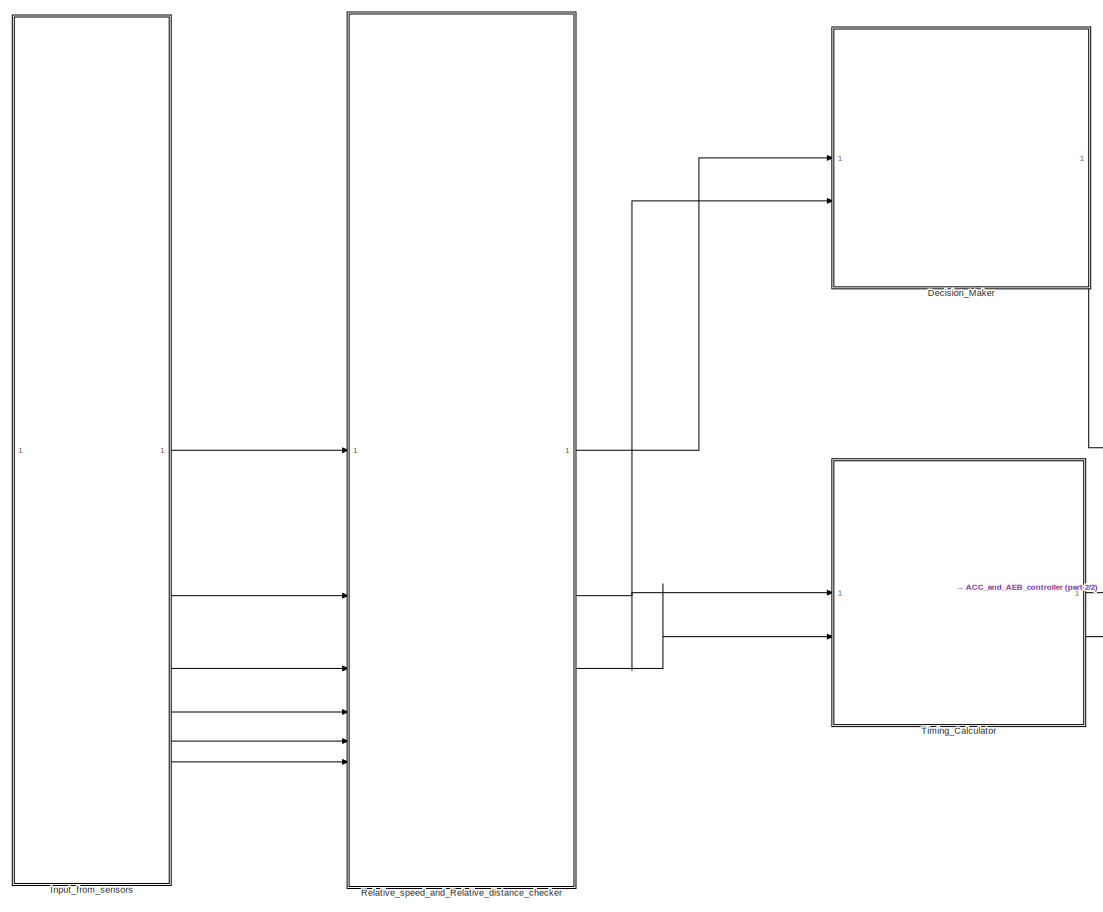
[diagram: root canvas - part 1/2, left side, full height]
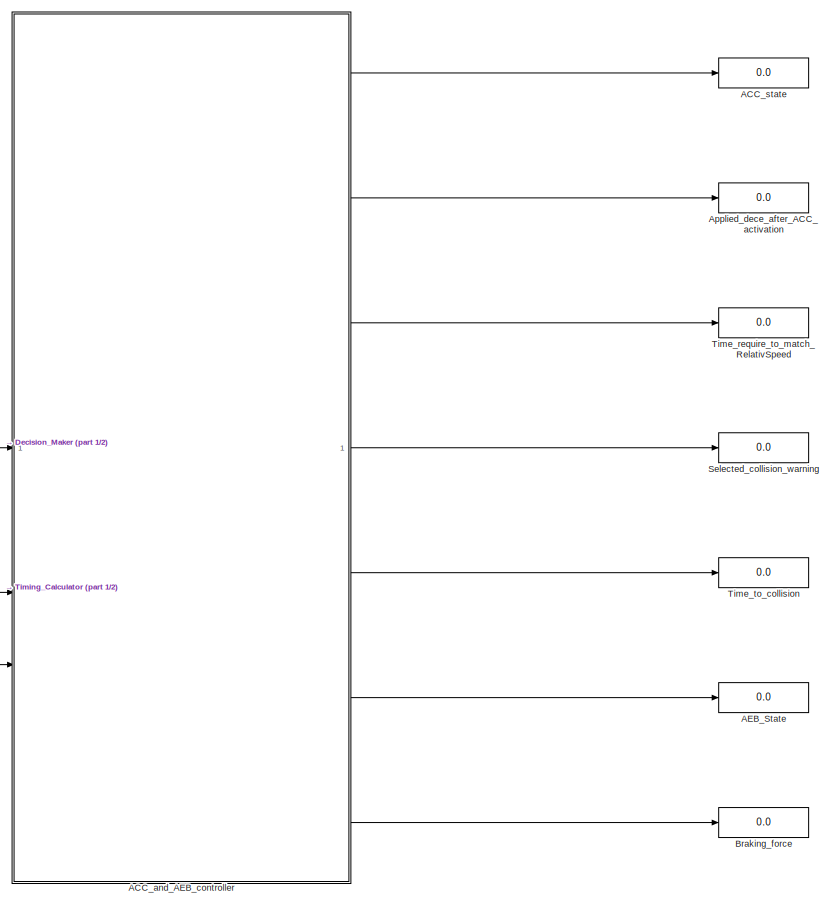
[diagram: root canvas - part 2/2, right side, full height]
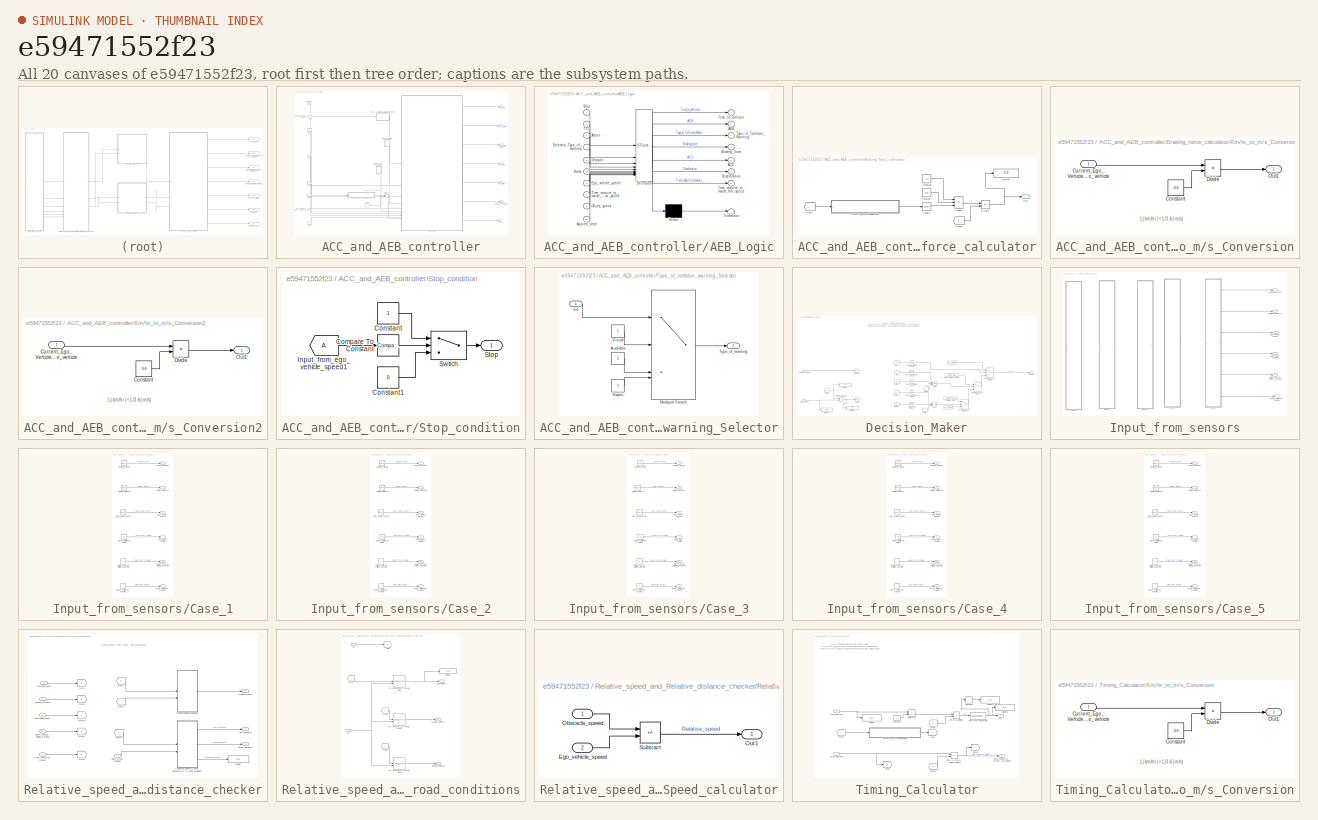
[diagram: thumbnail index - all 20 canvases of the model, root first then tree order]
MODEL slx_e59471552f23
KIND model
CONFIG AbsTol = auto
CONFIG EnableMultiTasking = off
CONFIG FixedStep = 0.1
CONFIG MaxStep = auto
CONFIG MinStep = auto
CONFIG RelTol = 1e-3
CONFIG SampleTimeConstraint = Unconstrained
CONFIG SolverName = FixedStepDiscrete
CONFIG StartTime = 0
CONFIG StopTime = 100
WORKSPACE source: mxarray member
WORKSPACE Activate_AEB = 2
WORKSPACE Do_nothing = 0
WORKSPACE M = 3
WORKSPACE Match_relative_speed = 1
BLOCK [SubSystem] ACC_and_AEB_controller
BLOCK [Outport] ACC_and_AEB_controller/ACC_state
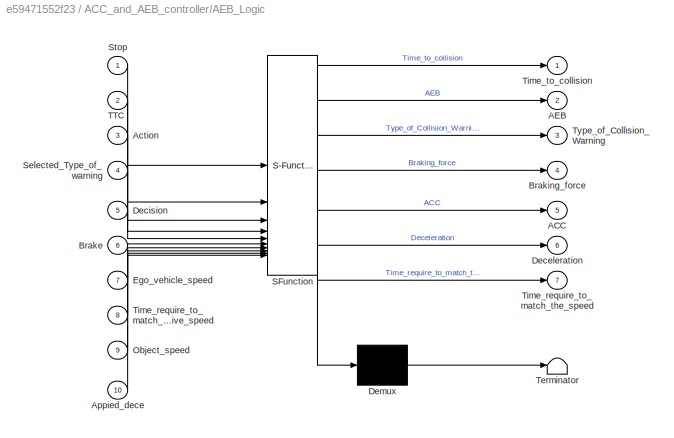
BLOCK [SubSystem] ACC_and_AEB_controller/AEB_Logic
  ErrorFcn = Stateflow.Translate.translate
  PermitHierarchicalResolution = ExplicitOnly
  PortSchema = {"entries":[{"content":{"sides":[{"content":{"connectorIds":["In5","In4","In3","In1","In2","In6","In7","In10","In8","In9"]},"type":"ConnectorPlacement.EquallySpacedRectSide","uuid":"56efa24c-13f5-4a10-8798-262846c2e7d6"},{"content":{"connectorIds":["Out2","Out1","Out3","Out5","Out6","Out7","Out4"],"side":"RIGHT"},"type":"ConnectorPlacement.EquallySpacedRectSide","uuid":"b772b444-91dc-49b5-b56a-560...<+337ch>
  SFBlockType = Chart
  TreatAsAtomicUnit = on
BLOCK [Demux] ACC_and_AEB_controller/AEB_Logic/ Demux 
  Outputs = 1
BLOCK [S-Function] ACC_and_AEB_controller/AEB_Logic/ SFunction 
  EnableBusSupport = on
  FunctionName = sf_sfun
  PortCounts = [10 8]
  SFcnIsStateOwnerBlock = off
  SFunctionDeploymentMode = off
  Tag = Stateflow S-Function 3
BLOCK [Terminator] ACC_and_AEB_controller/AEB_Logic/ Terminator 
BLOCK [Outport] ACC_and_AEB_controller/AEB_Logic/ACC
  Port = 5
BLOCK [Outport] ACC_and_AEB_controller/AEB_Logic/AEB
  Port = 2
BLOCK [Inport] ACC_and_AEB_controller/AEB_Logic/Action
  Port = 3
BLOCK [Inport] ACC_and_AEB_controller/AEB_Logic/Appied_dece
  Port = 10
BLOCK [Inport] ACC_and_AEB_controller/AEB_Logic/Brake
  Port = 6
BLOCK [Outport] ACC_and_AEB_controller/AEB_Logic/Braking_force
  Port = 4
BLOCK [Outport] ACC_and_AEB_controller/AEB_Logic/Deceleration
  Port = 6
BLOCK [Inport] ACC_and_AEB_controller/AEB_Logic/Decision
  Port = 5
BLOCK [Inport] ACC_and_AEB_controller/AEB_Logic/Ego_vehicle_speed
  Port = 7
BLOCK [Inport] ACC_and_AEB_controller/AEB_Logic/Object_speed
  Port = 9
BLOCK [Inport] ACC_and_AEB_controller/AEB_Logic/Selected_Type_of_warning
  Port = 4
BLOCK [Inport] ACC_and_AEB_controller/AEB_Logic/Stop
BLOCK [Inport] ACC_and_AEB_controller/AEB_Logic/TTC
  Port = 2
BLOCK [Inport] ACC_and_AEB_controller/AEB_Logic/Time_require_to_match_relative_speed
  Port = 8
BLOCK [Outport] ACC_and_AEB_controller/AEB_Logic/Time_require_to_match_the_speed
  Port = 7
BLOCK [Outport] ACC_and_AEB_controller/AEB_Logic/Time_to_collision
BLOCK [Outport] ACC_and_AEB_controller/AEB_Logic/Type_of_Collision_Warning
  Port = 3
BLOCK [Outport] ACC_and_AEB_controller/AEB_state
  Port = 6
BLOCK [Outport] ACC_and_AEB_controller/Brake
  Port = 7
BLOCK [SubSystem] ACC_and_AEB_controller/Braking_force_calculator
BLOCK [Constant] ACC_and_AEB_controller/Braking_force_calculator/Constant
  Value = 0.5
BLOCK [Constant] ACC_and_AEB_controller/Braking_force_calculator/Constant1
  Value = 1500
BLOCK [Display] ACC_and_AEB_controller/Braking_force_calculator/Display
  Decimation = 1
BLOCK [Product] ACC_and_AEB_controller/Braking_force_calculator/Divide1
  Inputs = */
BLOCK [From] ACC_and_AEB_controller/Braking_force_calculator/From6
  GotoTag = Z
  TagVisibility = global
BLOCK [From] ACC_and_AEB_controller/Braking_force_calculator/From7
  TagVisibility = global
BLOCK [SubSystem] ACC_and_AEB_controller/Braking_force_calculator/Km//hr_to_m//s_Conversion
BLOCK [Constant] ACC_and_AEB_controller/Braking_force_calculator/Km//hr_to_m//s_Conversion/Constant
  Value = 3.6
BLOCK [Inport] ACC_and_AEB_controller/Braking_force_calculator/Km//hr_to_m//s_Conversion/Current_Ego_Vehicle_Speed_Input_from_ego_vehicle
BLOCK [Product] ACC_and_AEB_controller/Braking_force_calculator/Km//hr_to_m//s_Conversion/Divide
  Inputs = */
BLOCK [Outport] ACC_and_AEB_controller/Braking_force_calculator/Km//hr_to_m//s_Conversion/Out1
BLOCK [Outport] ACC_and_AEB_controller/Braking_force_calculator/Out1
BLOCK [Product] ACC_and_AEB_controller/Braking_force_calculator/Product
  Inputs = 3
BLOCK [Math] ACC_and_AEB_controller/Braking_force_calculator/Square
  Operator = square
BLOCK [Outport] ACC_and_AEB_controller/Deceleration
  Port = 2
BLOCK [Inport] ACC_and_AEB_controller/Decision
BLOCK [Product] ACC_and_AEB_controller/Divide2
  Inputs = */
BLOCK [From] ACC_and_AEB_controller/From
  GotoTag = I
  TagVisibility = global
BLOCK [From] ACC_and_AEB_controller/From5
  GotoTag = K
  TagVisibility = global
BLOCK [From] ACC_and_AEB_controller/From7
  TagVisibility = global
BLOCK [From] ACC_and_AEB_controller/From8
  GotoTag = F
  TagVisibility = global
BLOCK [From] ACC_and_AEB_controller/From9
  GotoTag = E
  TagVisibility = global
BLOCK [From] ACC_and_AEB_controller/Input_from_warning_selector
  GotoTag = C
  TagVisibility = global
BLOCK [SubSystem] ACC_and_AEB_controller/Km//hr_to_m//s_Conversion2
BLOCK [Constant] ACC_and_AEB_controller/Km//hr_to_m//s_Conversion2/Constant
  Value = 3.6
BLOCK [Inport] ACC_and_AEB_controller/Km//hr_to_m//s_Conversion2/Current_Ego_Vehicle_Speed_Input_from_ego_vehicle
BLOCK [Product] ACC_and_AEB_controller/Km//hr_to_m//s_Conversion2/Divide
  Inputs = */
BLOCK [Outport] ACC_and_AEB_controller/Km//hr_to_m//s_Conversion2/Out1
BLOCK [SubSystem] ACC_and_AEB_controller/Stop_condition
BLOCK [Reference] ACC_and_AEB_controller/Stop_condition/Compare To Constant  REF=simulink/Logic and Bit
Operations/Compare
To Constant
  SourceBlock = simulink/Logic and Bit\nOperations/Compare\nTo Constant
  SourceType = Compare To Constant
BLOCK [Constant] ACC_and_AEB_controller/Stop_condition/Constant
BLOCK [Constant] ACC_and_AEB_controller/Stop_condition/Constant1
  Value = 0
BLOCK [From] ACC_and_AEB_controller/Stop_condition/Input_from_ego_vehicle_speed1
  TagVisibility = global
BLOCK [Outport] ACC_and_AEB_controller/Stop_condition/Stop
BLOCK [Switch] ACC_and_AEB_controller/Stop_condition/Switch
  Criteria = u2 > Threshold
  InputSameDT = off
  SaturateOnIntegerOverflow = off
BLOCK [Inport] ACC_and_AEB_controller/TTC
  Port = 2
BLOCK [Outport] ACC_and_AEB_controller/T_require_to_match_the_lead_Vehicle_speed1
  Port = 3
BLOCK [Inport] ACC_and_AEB_controller/Time_require_to_match_relative_speed1
  Port = 3
BLOCK [Outport] ACC_and_AEB_controller/Time_to_collision
  Port = 5
BLOCK [Outport] ACC_and_AEB_controller/Type_of_Collision_Warning
  Port = 4
BLOCK [SubSystem] ACC_and_AEB_controller/Type_of_collision_warning_Selector
BLOCK [Constant] ACC_and_AEB_controller/Type_of_collision_warning_Selector/Audiable
  Value = 2
BLOCK [Constant] ACC_and_AEB_controller/Type_of_collision_warning_Selector/Haptic
  Value = 3
BLOCK [Inport] ACC_and_AEB_controller/Type_of_collision_warning_Selector/In1
BLOCK [MultiPortSwitch] ACC_and_AEB_controller/Type_of_collision_warning_Selector/Multiport Switch
  InputSameDT = off
  SaturateOnIntegerOverflow = off
BLOCK [Outport] ACC_and_AEB_controller/Type_of_collision_warning_Selector/Type_of_warning
BLOCK [Constant] ACC_and_AEB_controller/Type_of_collision_warning_Selector/Visual
BLOCK [Display] ACC_state
  Decimation = 1
BLOCK [Display] AEB_State
  Decimation = 1
BLOCK [Display] Applied_dece_after_ACC_activation
  Decimation = 1
BLOCK [Display] Braking_force
  Decimation = 1
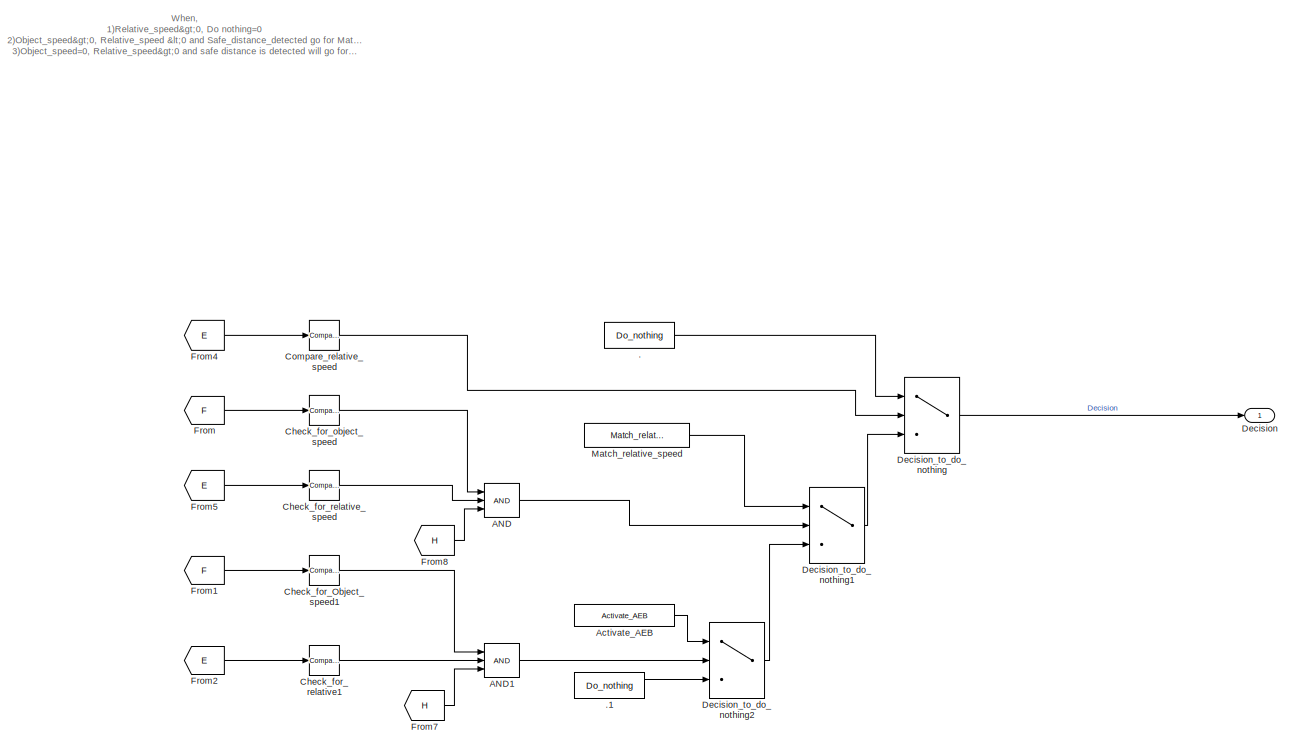
[diagram: Decision_Maker - part 1/2, center side, full height]
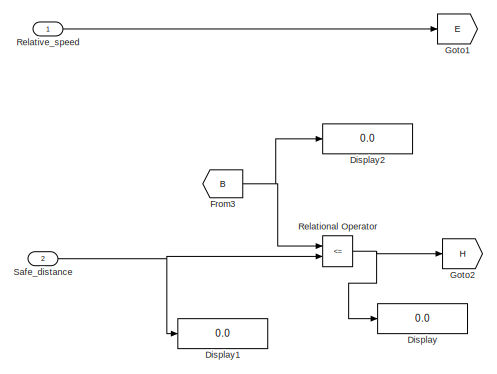
[diagram: Decision_Maker - part 2/2, bottom left region]
BLOCK [SubSystem] Decision_Maker
BLOCK [Constant] Decision_Maker/.
  Value = Do_nothing
BLOCK [Constant] Decision_Maker/.1
  Value = Do_nothing
BLOCK [Logic] Decision_Maker/AND
  AllPortsSameDT = off
  Inputs = 3
  OutDataTypeStr = boolean
BLOCK [Logic] Decision_Maker/AND1
  AllPortsSameDT = off
  Inputs = 3
  OutDataTypeStr = boolean
BLOCK [Constant] Decision_Maker/Activate_AEB
  Value = Activate_AEB
BLOCK [Reference] Decision_Maker/Check_for_Object_speed1  REF=simulink/Logic and Bit
Operations/Compare
To Constant
  SourceBlock = simulink/Logic and Bit\nOperations/Compare\nTo Constant
  SourceType = Compare To Constant
BLOCK [Reference] Decision_Maker/Check_for_object_speed  REF=simulink/Logic and Bit
Operations/Compare
To Constant
  SourceBlock = simulink/Logic and Bit\nOperations/Compare\nTo Constant
  SourceType = Compare To Constant
BLOCK [Reference] Decision_Maker/Check_for_relative1  REF=simulink/Logic and Bit
Operations/Compare
To Constant
  SourceBlock = simulink/Logic and Bit\nOperations/Compare\nTo Constant
  SourceType = Compare To Constant
BLOCK [Reference] Decision_Maker/Check_for_relative_speed  REF=simulink/Logic and Bit
Operations/Compare
To Constant
  SourceBlock = simulink/Logic and Bit\nOperations/Compare\nTo Constant
  SourceType = Compare To Constant
BLOCK [Reference] Decision_Maker/Compare_relative_speed  REF=simulink/Logic and Bit
Operations/Compare
To Constant
  SourceBlock = simulink/Logic and Bit\nOperations/Compare\nTo Constant
  SourceType = Compare To Constant
BLOCK [Outport] Decision_Maker/Decision
BLOCK [Switch] Decision_Maker/Decision_to_do_nothing
  Criteria = u2 ~= 0
  InputSameDT = off
  SaturateOnIntegerOverflow = off
BLOCK [Switch] Decision_Maker/Decision_to_do_nothing1
  Criteria = u2 ~= 0
  InputSameDT = off
  SaturateOnIntegerOverflow = off
BLOCK [Switch] Decision_Maker/Decision_to_do_nothing2
  Criteria = u2 ~= 0
  InputSameDT = off
  SaturateOnIntegerOverflow = off
BLOCK [Display] Decision_Maker/Display
  Decimation = 1
BLOCK [Display] Decision_Maker/Display1
  Decimation = 1
BLOCK [Display] Decision_Maker/Display2
  Decimation = 1
BLOCK [From] Decision_Maker/From
  GotoTag = F
  TagVisibility = global
BLOCK [From] Decision_Maker/From1
  GotoTag = F
  TagVisibility = global
BLOCK [From] Decision_Maker/From2
  GotoTag = E
  TagVisibility = global
BLOCK [From] Decision_Maker/From3
  GotoTag = B
  TagVisibility = global
BLOCK [From] Decision_Maker/From4
  GotoTag = E
  TagVisibility = global
BLOCK [From] Decision_Maker/From5
  GotoTag = E
  TagVisibility = global
BLOCK [From] Decision_Maker/From7
  GotoTag = H
BLOCK [From] Decision_Maker/From8
  GotoTag = H
BLOCK [Goto] Decision_Maker/Goto1
  GotoTag = E
  TagVisibility = global
BLOCK [Goto] Decision_Maker/Goto2
  GotoTag = H
BLOCK [Constant] Decision_Maker/Match_relative_speed
  Value = Match_relative_speed
BLOCK [RelationalOperator] Decision_Maker/Relational Operator
  InputSameDT = off
  Operator = <=
  OutDataTypeStr = boolean
  RndMeth = Simplest
BLOCK [Inport] Decision_Maker/Relative_speed
BLOCK [Inport] Decision_Maker/Safe_distance
  Port = 2
BLOCK [SubSystem] Input_from_sensors
BLOCK [SubSystem] Input_from_sensors/Case_1
  Commented = on
BLOCK [Constant] Input_from_sensors/Case_1/Driver_action_for_braking
  Value = 0
BLOCK [Outport] Input_from_sensors/Case_1/Driver_action_for_braking1
  Port = 6
BLOCK [Reference] Input_from_sensors/Case_1/Ego_vehicle_speed  REF=simulink/Sources/Repeating
Sequence
Stair
  SourceBlock = simulink/Sources/Repeating\nSequence\nStair
  SourceType = Repeating Sequence Stair
BLOCK [Outport] Input_from_sensors/Case_1/Ego_vehicle_speed1
  Port = 3
BLOCK [Reference] Input_from_sensors/Case_1/Obstacle_Speed  REF=simulink/Sources/Repeating
Sequence
Stair
  SourceBlock = simulink/Sources/Repeating\nSequence\nStair
  SourceType = Repeating Sequence Stair
BLOCK [Outport] Input_from_sensors/Case_1/Obstacle_Speed1
BLOCK [Reference] Input_from_sensors/Case_1/Relative_Distance  REF=simulink/Sources/Repeating
Sequence
Stair
  SourceBlock = simulink/Sources/Repeating\nSequence\nStair
  SourceType = Repeating Sequence Stair
BLOCK [Outport] Input_from_sensors/Case_1/Relative_Distance1
  Port = 2
BLOCK [Outport] Input_from_sensors/Case_1/Select_Road_condition
  Port = 4
BLOCK [Constant] Input_from_sensors/Case_1/Select_Type_of_collision_warning
BLOCK [Outport] Input_from_sensors/Case_1/Select_Type_of_collision_warning1
  Port = 5
BLOCK [Constant] Input_from_sensors/Case_1/Select_coeffient_of_friction
  Value = 0.8
BLOCK [SubSystem] Input_from_sensors/Case_2
BLOCK [Constant] Input_from_sensors/Case_2/Driver_action_for_braking
BLOCK [Outport] Input_from_sensors/Case_2/Driver_action_for_braking1
  Port = 6
BLOCK [Reference] Input_from_sensors/Case_2/Ego_vehicle_speed  REF=simulink/Sources/Repeating
Sequence
Stair
  SourceBlock = simulink/Sources/Repeating\nSequence\nStair
  SourceType = Repeating Sequence Stair
BLOCK [Outport] Input_from_sensors/Case_2/Ego_vehicle_speed1
  Port = 3
BLOCK [Reference] Input_from_sensors/Case_2/Obstacle_Speed  REF=simulink/Sources/Repeating
Sequence
Stair
  SourceBlock = simulink/Sources/Repeating\nSequence\nStair
  SourceType = Repeating Sequence Stair
BLOCK [Outport] Input_from_sensors/Case_2/Obstacle_Speed1
BLOCK [Reference] Input_from_sensors/Case_2/Relative_Distance  REF=simulink/Sources/Repeating
Sequence
Stair
  SourceBlock = simulink/Sources/Repeating\nSequence\nStair
  SourceType = Repeating Sequence Stair
BLOCK [Outport] Input_from_sensors/Case_2/Relative_Distance1
  Port = 2
BLOCK [Outport] Input_from_sensors/Case_2/Select_Road_condition
  Port = 4
BLOCK [Constant] Input_from_sensors/Case_2/Select_Type_of_collision_warning
BLOCK [Outport] Input_from_sensors/Case_2/Select_Type_of_collision_warning1
  Port = 5
BLOCK [Constant] Input_from_sensors/Case_2/Select_coeffient_of_friction
  Value = 0.8
BLOCK [SubSystem] Input_from_sensors/Case_3
  Commented = on
BLOCK [Constant] Input_from_sensors/Case_3/Driver_action_for_braking
  Value = 0
BLOCK [Outport] Input_from_sensors/Case_3/Driver_action_for_braking1
  Port = 6
BLOCK [Reference] Input_from_sensors/Case_3/Ego_vehicle_speed  REF=simulink/Sources/Repeating
Sequence
Stair
  SourceBlock = simulink/Sources/Repeating\nSequence\nStair
  SourceType = Repeating Sequence Stair
BLOCK [Outport] Input_from_sensors/Case_3/Ego_vehicle_speed1
  Port = 3
BLOCK [Reference] Input_from_sensors/Case_3/Obstacle_Speed  REF=simulink/Sources/Repeating
Sequence
Stair
  SourceBlock = simulink/Sources/Repeating\nSequence\nStair
  SourceType = Repeating Sequence Stair
BLOCK [Outport] Input_from_sensors/Case_3/Obstacle_Speed1
BLOCK [Reference] Input_from_sensors/Case_3/Relative_Distance  REF=simulink/Sources/Repeating
Sequence
Stair
  SourceBlock = simulink/Sources/Repeating\nSequence\nStair
  SourceType = Repeating Sequence Stair
BLOCK [Outport] Input_from_sensors/Case_3/Relative_Distance1
  Port = 2
BLOCK [Outport] Input_from_sensors/Case_3/Select_Road_condition
  Port = 4
BLOCK [Constant] Input_from_sensors/Case_3/Select_Type_of_collision_warning
BLOCK [Outport] Input_from_sensors/Case_3/Select_Type_of_collision_warning1
  Port = 5
BLOCK [Constant] Input_from_sensors/Case_3/Select_coeffient_of_friction
  Value = 0.8
BLOCK [SubSystem] Input_from_sensors/Case_4
  Commented = on
BLOCK [Constant] Input_from_sensors/Case_4/Driver_action_for_braking
  Value = 0
BLOCK [Outport] Input_from_sensors/Case_4/Driver_action_for_braking1
  Port = 6
BLOCK [Reference] Input_from_sensors/Case_4/Ego_vehicle_speed  REF=simulink/Sources/Repeating
Sequence
Stair
  SourceBlock = simulink/Sources/Repeating\nSequence\nStair
  SourceType = Repeating Sequence Stair
BLOCK [Outport] Input_from_sensors/Case_4/Ego_vehicle_speed1
  Port = 3
BLOCK [Reference] Input_from_sensors/Case_4/Obstacle_Speed  REF=simulink/Sources/Repeating
Sequence
Stair
  SourceBlock = simulink/Sources/Repeating\nSequence\nStair
  SourceType = Repeating Sequence Stair
BLOCK [Outport] Input_from_sensors/Case_4/Obstacle_Speed1
BLOCK [Reference] Input_from_sensors/Case_4/Relative_Distance  REF=simulink/Sources/Repeating
Sequence
Stair
  SourceBlock = simulink/Sources/Repeating\nSequence\nStair
  SourceType = Repeating Sequence Stair
BLOCK [Outport] Input_from_sensors/Case_4/Relative_Distance1
  Port = 2
BLOCK [Outport] Input_from_sensors/Case_4/Select_Road_condition
  Port = 4
BLOCK [Constant] Input_from_sensors/Case_4/Select_Type_of_collision_warning
BLOCK [Outport] Input_from_sensors/Case_4/Select_Type_of_collision_warning1
  Port = 5
BLOCK [Constant] Input_from_sensors/Case_4/Select_coeffient_of_friction
  Value = 0.8
BLOCK [SubSystem] Input_from_sensors/Case_5
  Commented = on
BLOCK [Constant] Input_from_sensors/Case_5/Driver_action_for_braking
  Value = 0
BLOCK [Outport] Input_from_sensors/Case_5/Driver_action_for_braking1
  Port = 6
BLOCK [Reference] Input_from_sensors/Case_5/Ego_vehicle_speed  REF=simulink/Sources/Repeating
Sequence
Stair
  SourceBlock = simulink/Sources/Repeating\nSequence\nStair
  SourceType = Repeating Sequence Stair
BLOCK [Outport] Input_from_sensors/Case_5/Ego_vehicle_speed1
  Port = 3
BLOCK [Reference] Input_from_sensors/Case_5/Obstacle_Speed  REF=simulink/Sources/Repeating
Sequence
Stair
  SourceBlock = simulink/Sources/Repeating\nSequence\nStair
  SourceType = Repeating Sequence Stair
BLOCK [Outport] Input_from_sensors/Case_5/Obstacle_Speed1
BLOCK [Reference] Input_from_sensors/Case_5/Relative_Distance  REF=simulink/Sources/Repeating
Sequence
Stair
  SourceBlock = simulink/Sources/Repeating\nSequence\nStair
  SourceType = Repeating Sequence Stair
BLOCK [Outport] Input_from_sensors/Case_5/Relative_Distance1
  Port = 2
BLOCK [Outport] Input_from_sensors/Case_5/Select_Road_condition
  Port = 4
BLOCK [Constant] Input_from_sensors/Case_5/Select_Type_of_collision_warning
BLOCK [Outport] Input_from_sensors/Case_5/Select_Type_of_collision_warning1
  Port = 5
BLOCK [Constant] Input_from_sensors/Case_5/Select_coeffient_of_friction
  Value = 0.8
BLOCK [Outport] Input_from_sensors/Driver_action_for_braking1
  Port = 6
BLOCK [Outport] Input_from_sensors/Ego_vehicle_speed1
  Port = 3
BLOCK [Outport] Input_from_sensors/Obstacle_Speed1
BLOCK [Outport] Input_from_sensors/Relative_Distance1
  Port = 2
BLOCK [Outport] Input_from_sensors/Select_Road_condition
  Port = 4
BLOCK [Outport] Input_from_sensors/Select_Type_of_collision_warning1
  Port = 5
BLOCK [SubSystem] Relative_speed_and_Relative_distance_checker
BLOCK [Outport] Relative_speed_and_Relative_distance_checker/Brake_distance
  Port = 3
BLOCK [SubSystem] Relative_speed_and_Relative_distance_checker/Calculated_Speed_vs_Safe_distance_Data_based_on_different_road_conditions
BLOCK [Outport] Relative_speed_and_Relative_distance_checker/Calculated_Speed_vs_Safe_distance_Data_based_on_different_road_conditions/Braking_distance
  Port = 2
BLOCK [Display] Relative_speed_and_Relative_distance_checker/Calculated_Speed_vs_Safe_distance_Data_based_on_different_road_conditions/Display
  Decimation = 1
BLOCK [Lookup_n-D] Relative_speed_and_Relative_distance_checker/Calculated_Speed_vs_Safe_distance_Data_based_on_different_road_conditions/Dry_concrete_Or_Asphalt_road
  BreakpointsForDimension1 = [30:10:120]
  BreakpointsForDimension2 = [0.2,0.5,0.8]
  BreakpointsForDimension3 = [5, 7]
  InputPortMap = u0,u1
  InternalRulePriority = Speed
  RndMeth = Simplest
  Table = [24.03 38.91 57.71 80.46 107.1 137.7 172.3 210.7 253.2 299.5; 13.41 20.03 28.22 37.98 49.32 62.23 76.71 92.77 110.4 129.6; 10.75 15.3 20.84 27.36 34.84 43.33 52.81 63.27 74.72 87.1 ].'
BLOCK [Lookup_n-D] Relative_speed_and_Relative_distance_checker/Calculated_Speed_vs_Safe_distance_Data_based_on_different_road_conditions/Dry_concrete_Or_Asphalt_road1
  BreakpointsForDimension1 = [30:10:120]
  BreakpointsForDimension2 = [0.2,0.5,0.8]
  BreakpointsForDimension3 = [5, 7]
  InputPortMap = u0,u1
  InternalRulePriority = Speed
  RndMeth = Simplest
  Table = [17.7 31.46 49.16 70.79 96.35 125.8 159.3 196.6 237.9 283.2; 7.07 12.58 19.66 28.32 38.54 50.34 63.71 78.65 95.17 113.3; 4.42 7.86 12.29 17.7 24.07 31.45 39.81 49.16 59.5 70.77].'
BLOCK [Lookup_n-D] Relative_speed_and_Relative_distance_checker/Calculated_Speed_vs_Safe_distance_Data_based_on_different_road_conditions/Dry_concrete_Or_Asphalt_road2
  BreakpointsForDimension1 = [30:10:120]
  BreakpointsForDimension2 = [0.2,0.5,0.8]
  BreakpointsForDimension3 = [5, 7]
  InputPortMap = u0,u1
  InternalRulePriority = Speed
  RndMeth = Simplest
  Table = [21.03 35.91 54.71 77.46 104.1 134.7 169.3 207.7 250.2 296.5; 10.41 17.03 25.22 34.98 46.32 59.23 73.71 89.77 107.4 126.6; 7.75 12.3 17.84 24.36 31.84 40.33 49.81 60.27 71.72 84.1].'
BLOCK [From] Relative_speed_and_Relative_distance_checker/Calculated_Speed_vs_Safe_distance_Data_based_on_different_road_conditions/From
BLOCK [From] Relative_speed_and_Relative_distance_checker/Calculated_Speed_vs_Safe_distance_Data_based_on_different_road_conditions/From3
BLOCK [From] Relative_speed_and_Relative_distance_checker/Calculated_Speed_vs_Safe_distance_Data_based_on_different_road_conditions/From6
BLOCK [Goto] Relative_speed_and_Relative_distance_checker/Calculated_Speed_vs_Safe_distance_Data_based_on_different_road_conditions/Goto
BLOCK [Inport] Relative_speed_and_Relative_distance_checker/Calculated_Speed_vs_Safe_distance_Data_based_on_different_road_conditions/In1
  Port = 2
BLOCK [Inport] Relative_speed_and_Relative_distance_checker/Calculated_Speed_vs_Safe_distance_Data_based_on_different_road_conditions/In4
BLOCK [Outport] Relative_speed_and_Relative_distance_checker/Calculated_Speed_vs_Safe_distance_Data_based_on_different_road_conditions/Safe_distance
BLOCK [Outport] Relative_speed_and_Relative_distance_checker/Calculated_Speed_vs_Safe_distance_Data_based_on_different_road_conditions/Stopping_distance
  Port = 3
BLOCK [Display] Relative_speed_and_Relative_distance_checker/Display
  Decimation = 1
BLOCK [Inport] Relative_speed_and_Relative_distance_checker/Driver_action_for_braking
  Port = 6
BLOCK [Inport] Relative_speed_and_Relative_distance_checker/Ego_vehicle_speed
  Port = 3
BLOCK [From] Relative_speed_and_Relative_distance_checker/From1
  GotoTag = F
  TagVisibility = global
BLOCK [From] Relative_speed_and_Relative_distance_checker/From2
  TagVisibility = global
BLOCK [From] Relative_speed_and_Relative_distance_checker/From3
  TagVisibility = global
BLOCK [Goto] Relative_speed_and_Relative_distance_checker/Goto
  GotoTag = F
  TagVisibility = global
BLOCK [Goto] Relative_speed_and_Relative_distance_checker/Goto1
  GotoTag = C
  TagVisibility = global
BLOCK [Goto] Relative_speed_and_Relative_distance_checker/Goto2
  GotoTag = B
  TagVisibility = global
BLOCK [Goto] Relative_speed_and_Relative_distance_checker/Goto3
  TagVisibility = global
BLOCK [Goto] Relative_speed_and_Relative_distance_checker/Goto4
  GotoTag = K
  TagVisibility = global
BLOCK [Inport] Relative_speed_and_Relative_distance_checker/Obstacle_speed
BLOCK [Inport] Relative_speed_and_Relative_distance_checker/Relative_Distance
  Port = 2
BLOCK [SubSystem] Relative_speed_and_Relative_distance_checker/Relative_Speed_calculator
BLOCK [Inport] Relative_speed_and_Relative_distance_checker/Relative_Speed_calculator/Ego_vehicle_speed
  Port = 2
BLOCK [Inport] Relative_speed_and_Relative_distance_checker/Relative_Speed_calculator/Obstacle_speed
BLOCK [Outport] Relative_speed_and_Relative_distance_checker/Relative_Speed_calculator/Out1
BLOCK [Sum] Relative_speed_and_Relative_distance_checker/Relative_Speed_calculator/Subtract
  IconShape = rectangular
  Inputs = +-
BLOCK [Outport] Relative_speed_and_Relative_distance_checker/Relative_speed
BLOCK [Outport] Relative_speed_and_Relative_distance_checker/Safe_distance
  Port = 2
BLOCK [Inport] Relative_speed_and_Relative_distance_checker/Select_Road_condition
  Port = 4
BLOCK [Inport] Relative_speed_and_Relative_distance_checker/Select_Type_of_collision_warning
  Port = 5
BLOCK [Display] Selected_collision_warning
  Decimation = 1
BLOCK [Display] Time_require_to_match_RelativSpeed
  Decimation = 1
BLOCK [Display] Time_to_collision
  Decimation = 1
BLOCK [SubSystem] Timing_Calculator
BLOCK [Inport] Timing_Calculator/Brake_distance
  Port = 2
BLOCK [Constant] Timing_Calculator/Constant
  Value = 3
BLOCK [DataTypeConversion] Timing_Calculator/Data Type Conversion
  OutDataTypeStr = double
  RndMeth = Floor
  SaturateOnIntegerOverflow = off
BLOCK [Display] Timing_Calculator/Display
  Decimation = 1
BLOCK [Display] Timing_Calculator/Display1
  Decimation = 1
BLOCK [Display] Timing_Calculator/Display2
  Decimation = 1
BLOCK [From] Timing_Calculator/From
  GotoTag = F
BLOCK [From] Timing_Calculator/From2
  GotoTag = F
BLOCK [From] Timing_Calculator/From5
  TagVisibility = global
BLOCK [Goto] Timing_Calculator/Goto
  GotoTag = F
BLOCK [Goto] Timing_Calculator/Goto2
  GotoTag = Z
  TagVisibility = global
BLOCK [Goto] Timing_Calculator/Goto3
  GotoTag = I
  TagVisibility = global
BLOCK [SubSystem] Timing_Calculator/Km//hr_to_m//s_Conversion
BLOCK [Constant] Timing_Calculator/Km//hr_to_m//s_Conversion/Constant
  Value = 3.6
BLOCK [Inport] Timing_Calculator/Km//hr_to_m//s_Conversion/Current_Ego_Vehicle_Speed_Input_from_ego_vehicle
BLOCK [Product] Timing_Calculator/Km//hr_to_m//s_Conversion/Divide
  Inputs = */
BLOCK [Outport] Timing_Calculator/Km//hr_to_m//s_Conversion/Out1
BLOCK [Quantizer] Timing_Calculator/Quantizer
  QuantizationInterval = 0.4
BLOCK [Inport] Timing_Calculator/Safe_distance
BLOCK [Sum] Timing_Calculator/Subtract
  IconShape = rectangular
  Inputs = +-
BLOCK [Outport] Timing_Calculator/TTC
BLOCK [Outport] Timing_Calculator/Time_require_to_match_relative_speed
  Port = 2
BLOCK [Product] Timing_Calculator/Time_to_collision
  Inputs = */
  RndMeth = Zero
BLOCK [Product] Timing_Calculator/Time_to_match_relative_speed
  Inputs = */
ANNOTATION ACC_and_AEB_controller/Braking_force_calculator/Km//hr_to_m//s_Conversion: 1(km/hr)=1/3.6(m/s)
ANNOTATION ACC_and_AEB_controller/Km//hr_to_m//s_Conversion2: 1(km/hr)=1/3.6(m/s)
ANNOTATION Decision_Maker: When, 1)Relative_speed>0, Do nothing=0 2)Object_speed>0, Relative_speed <0 and Safe_distance_detected go for Match relative speed=1 3)Object_speed=0, Relative_speed>0 and safe distance is detected will go for AEB =2
ANNOTATION Relative_speed_and_Relative_distance_checker: Relative_speed= Object_speed - Ego_vehicle_speed
ANNOTATION Timing_Calculator: 1)TTC= Stopping_distance/Ego_vehicle_velocity 2)TTC_after_reaction_time= Braking_distance/Ego_vehicle_velocity 3)Time_to_match_relative_speed=Braking_distance/Ego_vehicle_speed
ANNOTATION Timing_Calculator/Km//hr_to_m//s_Conversion: 1(km/hr)=1/3.6(m/s)
LINE ACC_and_AEB_controller/AEB_Logic:1 -> ACC_and_AEB_controller/Time_to_collision:1
LINE ACC_and_AEB_controller/AEB_Logic:2 -> ACC_and_AEB_controller/AEB_state:1
LINE ACC_and_AEB_controller/AEB_Logic:3 -> ACC_and_AEB_controller/Type_of_Collision_Warning:1
LINE ACC_and_AEB_controller/AEB_Logic:4 -> ACC_and_AEB_controller/Brake:1
LINE ACC_and_AEB_controller/AEB_Logic:5 -> ACC_and_AEB_controller/ACC_state:1
LINE ACC_and_AEB_controller/AEB_Logic:6 -> ACC_and_AEB_controller/Deceleration:1
LINE ACC_and_AEB_controller/AEB_Logic:7 -> ACC_and_AEB_controller/T_require_to_match_the_lead_Vehicle_speed1:1
LINE ACC_and_AEB_controller/Braking_force_calculator/Constant1:1 -> ACC_and_AEB_controller/Braking_force_calculator/Product:2
LINE ACC_and_AEB_controller/Braking_force_calculator/Constant:1 -> ACC_and_AEB_controller/Braking_force_calculator/Product:1
NET ACC_and_AEB_controller/Braking_force_calculator/Divide1:1 -> ACC_and_AEB_controller/Braking_force_calculator/Display:1, ACC_and_AEB_controller/Braking_force_calculator/Out1:1
LINE ACC_and_AEB_controller/Braking_force_calculator/From6:1 -> ACC_and_AEB_controller/Braking_force_calculator/Divide1:2
LINE ACC_and_AEB_controller/Braking_force_calculator/From7:1 -> ACC_and_AEB_controller/Braking_force_calculator/Km//hr_to_m//s_Conversion:1
LINE ACC_and_AEB_controller/Braking_force_calculator/Km//hr_to_m//s_Conversion/Constant:1 -> ACC_and_AEB_controller/Braking_force_calculator/Km//hr_to_m//s_Conversion/Divide:2
LINE ACC_and_AEB_controller/Braking_force_calculator/Km//hr_to_m//s_Conversion/Current_Ego_Vehicle_Speed_Input_from_ego_vehicle:1 -> ACC_and_AEB_controller/Braking_force_calculator/Km//hr_to_m//s_Conversion/Divide:1
LINE ACC_and_AEB_controller/Braking_force_calculator/Km//hr_to_m//s_Conversion/Divide:1 -> ACC_and_AEB_controller/Braking_force_calculator/Km//hr_to_m//s_Conversion/Out1:1
LINE ACC_and_AEB_controller/Braking_force_calculator/Km//hr_to_m//s_Conversion:1 -> ACC_and_AEB_controller/Braking_force_calculator/Square:1
LINE ACC_and_AEB_controller/Braking_force_calculator/Product:1 -> ACC_and_AEB_controller/Braking_force_calculator/Divide1:1
LINE ACC_and_AEB_controller/Braking_force_calculator/Square:1 -> ACC_and_AEB_controller/Braking_force_calculator/Product:3
LINE ACC_and_AEB_controller/Braking_force_calculator:1 -> ACC_and_AEB_controller/AEB_Logic:6
LINE ACC_and_AEB_controller/Decision:1 -> ACC_and_AEB_controller/AEB_Logic:5
LINE ACC_and_AEB_controller/Divide2:1 -> ACC_and_AEB_controller/AEB_Logic:10
LINE ACC_and_AEB_controller/From5:1 -> ACC_and_AEB_controller/AEB_Logic:3
LINE ACC_and_AEB_controller/From7:1 -> ACC_and_AEB_controller/AEB_Logic:7
LINE ACC_and_AEB_controller/From8:1 -> ACC_and_AEB_controller/AEB_Logic:9
LINE ACC_and_AEB_controller/From9:1 -> ACC_and_AEB_controller/Km//hr_to_m//s_Conversion2:1
LINE ACC_and_AEB_controller/From:1 -> ACC_and_AEB_controller/Divide2:2
LINE ACC_and_AEB_controller/Input_from_warning_selector:1 -> ACC_and_AEB_controller/Type_of_collision_warning_Selector:1
LINE ACC_and_AEB_controller/Km//hr_to_m//s_Conversion2/Constant:1 -> ACC_and_AEB_controller/Km//hr_to_m//s_Conversion2/Divide:2
LINE ACC_and_AEB_controller/Km//hr_to_m//s_Conversion2/Current_Ego_Vehicle_Speed_Input_from_ego_vehicle:1 -> ACC_and_AEB_controller/Km//hr_to_m//s_Conversion2/Divide:1
LINE ACC_and_AEB_controller/Km//hr_to_m//s_Conversion2/Divide:1 -> ACC_and_AEB_controller/Km//hr_to_m//s_Conversion2/Out1:1
LINE ACC_and_AEB_controller/Km//hr_to_m//s_Conversion2:1 -> ACC_and_AEB_controller/Divide2:1
LINE ACC_and_AEB_controller/Stop_condition/Compare To Constant:1 -> ACC_and_AEB_controller/Stop_condition/Switch:2
LINE ACC_and_AEB_controller/Stop_condition/Constant1:1 -> ACC_and_AEB_controller/Stop_condition/Switch:3
LINE ACC_and_AEB_controller/Stop_condition/Constant:1 -> ACC_and_AEB_controller/Stop_condition/Switch:1
LINE ACC_and_AEB_controller/Stop_condition/Input_from_ego_vehicle_speed1:1 -> ACC_and_AEB_controller/Stop_condition/Compare To Constant:1
LINE ACC_and_AEB_controller/Stop_condition/Switch:1 -> ACC_and_AEB_controller/Stop_condition/Stop:1
LINE ACC_and_AEB_controller/Stop_condition:1 -> ACC_and_AEB_controller/AEB_Logic:1
LINE ACC_and_AEB_controller/TTC:1 -> ACC_and_AEB_controller/AEB_Logic:2
LINE ACC_and_AEB_controller/Time_require_to_match_relative_speed1:1 -> ACC_and_AEB_controller/AEB_Logic:8
LINE ACC_and_AEB_controller/Type_of_collision_warning_Selector/Audiable:1 -> ACC_and_AEB_controller/Type_of_collision_warning_Selector/Multiport Switch:3
LINE ACC_and_AEB_controller/Type_of_collision_warning_Selector/Haptic:1 -> ACC_and_AEB_controller/Type_of_collision_warning_Selector/Multiport Switch:4
LINE ACC_and_AEB_controller/Type_of_collision_warning_Selector/In1:1 -> ACC_and_AEB_controller/Type_of_collision_warning_Selector/Multiport Switch:1
LINE ACC_and_AEB_controller/Type_of_collision_warning_Selector/Multiport Switch:1 -> ACC_and_AEB_controller/Type_of_collision_warning_Selector/Type_of_warning:1
LINE ACC_and_AEB_controller/Type_of_collision_warning_Selector/Visual:1 -> ACC_and_AEB_controller/Type_of_collision_warning_Selector/Multiport Switch:2
LINE ACC_and_AEB_controller/Type_of_collision_warning_Selector:1 -> ACC_and_AEB_controller/AEB_Logic:4
LINE ACC_and_AEB_controller:1 -> ACC_state:1
LINE ACC_and_AEB_controller:2 -> Applied_dece_after_ACC_activation:1
LINE ACC_and_AEB_controller:3 -> Time_require_to_match_RelativSpeed:1
LINE ACC_and_AEB_controller:4 -> Selected_collision_warning:1
LINE ACC_and_AEB_controller:5 -> Time_to_collision:1
LINE ACC_and_AEB_controller:6 -> AEB_State:1
LINE ACC_and_AEB_controller:7 -> Braking_force:1
LINE Decision_Maker/.1:1 -> Decision_Maker/Decision_to_do_nothing2:3
LINE Decision_Maker/.:1 -> Decision_Maker/Decision_to_do_nothing:1
LINE Decision_Maker/AND1:1 -> Decision_Maker/Decision_to_do_nothing2:2
LINE Decision_Maker/AND:1 -> Decision_Maker/Decision_to_do_nothing1:2
LINE Decision_Maker/Activate_AEB:1 -> Decision_Maker/Decision_to_do_nothing2:1
LINE Decision_Maker/Check_for_Object_speed1:1 -> Decision_Maker/AND1:1
LINE Decision_Maker/Check_for_object_speed:1 -> Decision_Maker/AND:1
LINE Decision_Maker/Check_for_relative1:1 -> Decision_Maker/AND1:2
LINE Decision_Maker/Check_for_relative_speed:1 -> Decision_Maker/AND:2
LINE Decision_Maker/Compare_relative_speed:1 -> Decision_Maker/Decision_to_do_nothing:2
LINE Decision_Maker/Decision_to_do_nothing1:1 -> Decision_Maker/Decision_to_do_nothing:3
LINE Decision_Maker/Decision_to_do_nothing2:1 -> Decision_Maker/Decision_to_do_nothing1:3
LINE Decision_Maker/Decision_to_do_nothing:1 -> Decision_Maker/Decision:1
LINE Decision_Maker/From1:1 -> Decision_Maker/Check_for_Object_speed1:1
LINE Decision_Maker/From2:1 -> Decision_Maker/Check_for_relative1:1
NET Decision_Maker/From3:1 -> Decision_Maker/Display2:1, Decision_Maker/Relational Operator:1
LINE Decision_Maker/From4:1 -> Decision_Maker/Compare_relative_speed:1
LINE Decision_Maker/From5:1 -> Decision_Maker/Check_for_relative_speed:1
LINE Decision_Maker/From7:1 -> Decision_Maker/AND1:3
LINE Decision_Maker/From8:1 -> Decision_Maker/AND:3
LINE Decision_Maker/From:1 -> Decision_Maker/Check_for_object_speed:1
LINE Decision_Maker/Match_relative_speed:1 -> Decision_Maker/Decision_to_do_nothing1:1
NET Decision_Maker/Relational Operator:1 -> Decision_Maker/Display:1, Decision_Maker/Goto2:1
LINE Decision_Maker/Relative_speed:1 -> Decision_Maker/Goto1:1
NET Decision_Maker/Safe_distance:1 -> Decision_Maker/Display1:1, Decision_Maker/Relational Operator:2
LINE Decision_Maker:1 -> ACC_and_AEB_controller:1
LINE Input_from_sensors/Case_1/Driver_action_for_braking:1 -> Input_from_sensors/Case_1/Driver_action_for_braking1:1
LINE Input_from_sensors/Case_1/Ego_vehicle_speed:1 -> Input_from_sensors/Case_1/Ego_vehicle_speed1:1
LINE Input_from_sensors/Case_1/Obstacle_Speed:1 -> Input_from_sensors/Case_1/Obstacle_Speed1:1
LINE Input_from_sensors/Case_1/Relative_Distance:1 -> Input_from_sensors/Case_1/Relative_Distance1:1
LINE Input_from_sensors/Case_1/Select_Type_of_collision_warning:1 -> Input_from_sensors/Case_1/Select_Type_of_collision_warning1:1
LINE Input_from_sensors/Case_1/Select_coeffient_of_friction:1 -> Input_from_sensors/Case_1/Select_Road_condition:1
LINE Input_from_sensors/Case_2/Driver_action_for_braking:1 -> Input_from_sensors/Case_2/Driver_action_for_braking1:1
LINE Input_from_sensors/Case_2/Ego_vehicle_speed:1 -> Input_from_sensors/Case_2/Ego_vehicle_speed1:1
LINE Input_from_sensors/Case_2/Obstacle_Speed:1 -> Input_from_sensors/Case_2/Obstacle_Speed1:1
LINE Input_from_sensors/Case_2/Relative_Distance:1 -> Input_from_sensors/Case_2/Relative_Distance1:1
LINE Input_from_sensors/Case_2/Select_Type_of_collision_warning:1 -> Input_from_sensors/Case_2/Select_Type_of_collision_warning1:1
LINE Input_from_sensors/Case_2/Select_coeffient_of_friction:1 -> Input_from_sensors/Case_2/Select_Road_condition:1
LINE Input_from_sensors/Case_2:1 -> Input_from_sensors/Obstacle_Speed1:1
LINE Input_from_sensors/Case_2:2 -> Input_from_sensors/Relative_Distance1:1
LINE Input_from_sensors/Case_2:3 -> Input_from_sensors/Ego_vehicle_speed1:1
LINE Input_from_sensors/Case_2:4 -> Input_from_sensors/Select_Road_condition:1
LINE Input_from_sensors/Case_2:5 -> Input_from_sensors/Select_Type_of_collision_warning1:1
LINE Input_from_sensors/Case_2:6 -> Input_from_sensors/Driver_action_for_braking1:1
LINE Input_from_sensors/Case_3/Driver_action_for_braking:1 -> Input_from_sensors/Case_3/Driver_action_for_braking1:1
LINE Input_from_sensors/Case_3/Ego_vehicle_speed:1 -> Input_from_sensors/Case_3/Ego_vehicle_speed1:1
LINE Input_from_sensors/Case_3/Obstacle_Speed:1 -> Input_from_sensors/Case_3/Obstacle_Speed1:1
LINE Input_from_sensors/Case_3/Relative_Distance:1 -> Input_from_sensors/Case_3/Relative_Distance1:1
LINE Input_from_sensors/Case_3/Select_Type_of_collision_warning:1 -> Input_from_sensors/Case_3/Select_Type_of_collision_warning1:1
LINE Input_from_sensors/Case_3/Select_coeffient_of_friction:1 -> Input_from_sensors/Case_3/Select_Road_condition:1
LINE Input_from_sensors/Case_4/Driver_action_for_braking:1 -> Input_from_sensors/Case_4/Driver_action_for_braking1:1
LINE Input_from_sensors/Case_4/Ego_vehicle_speed:1 -> Input_from_sensors/Case_4/Ego_vehicle_speed1:1
LINE Input_from_sensors/Case_4/Obstacle_Speed:1 -> Input_from_sensors/Case_4/Obstacle_Speed1:1
LINE Input_from_sensors/Case_4/Relative_Distance:1 -> Input_from_sensors/Case_4/Relative_Distance1:1
LINE Input_from_sensors/Case_4/Select_Type_of_collision_warning:1 -> Input_from_sensors/Case_4/Select_Type_of_collision_warning1:1
LINE Input_from_sensors/Case_4/Select_coeffient_of_friction:1 -> Input_from_sensors/Case_4/Select_Road_condition:1
LINE Input_from_sensors/Case_5/Driver_action_for_braking:1 -> Input_from_sensors/Case_5/Driver_action_for_braking1:1
LINE Input_from_sensors/Case_5/Ego_vehicle_speed:1 -> Input_from_sensors/Case_5/Ego_vehicle_speed1:1
LINE Input_from_sensors/Case_5/Obstacle_Speed:1 -> Input_from_sensors/Case_5/Obstacle_Speed1:1
LINE Input_from_sensors/Case_5/Relative_Distance:1 -> Input_from_sensors/Case_5/Relative_Distance1:1
LINE Input_from_sensors/Case_5/Select_Type_of_collision_warning:1 -> Input_from_sensors/Case_5/Select_Type_of_collision_warning1:1
LINE Input_from_sensors/Case_5/Select_coeffient_of_friction:1 -> Input_from_sensors/Case_5/Select_Road_condition:1
LINE Input_from_sensors:1 -> Relative_speed_and_Relative_distance_checker:1
LINE Input_from_sensors:2 -> Relative_speed_and_Relative_distance_checker:2
LINE Input_from_sensors:3 -> Relative_speed_and_Relative_distance_checker:3
LINE Input_from_sensors:4 -> Relative_speed_and_Relative_distance_checker:4
LINE Input_from_sensors:5 -> Relative_speed_and_Relative_distance_checker:5
LINE Input_from_sensors:6 -> Relative_speed_and_Relative_distance_checker:6
LINE Relative_speed_and_Relative_distance_checker/Calculated_Speed_vs_Safe_distance_Data_based_on_different_road_conditions/Dry_concrete_Or_Asphalt_road1:1 -> Relative_speed_and_Relative_distance_checker/Calculated_Speed_vs_Safe_distance_Data_based_on_different_road_conditions/Braking_distance:1
LINE Relative_speed_and_Relative_distance_checker/Calculated_Speed_vs_Safe_distance_Data_based_on_different_road_conditions/Dry_concrete_Or_Asphalt_road2:1 -> Relative_speed_and_Relative_distance_checker/Calculated_Speed_vs_Safe_distance_Data_based_on_different_road_conditions/Stopping_distance:1
NET Relative_speed_and_Relative_distance_checker/Calculated_Speed_vs_Safe_distance_Data_based_on_different_road_conditions/Dry_concrete_Or_Asphalt_road:1 -> Relative_speed_and_Relative_distance_checker/Calculated_Speed_vs_Safe_distance_Data_based_on_different_road_conditions/Display:1, Relative_speed_and_Relative_distance_checker/Calculated_Speed_vs_Safe_distance_Data_based_on_different_road_conditions/Safe_distance:1
LINE Relative_speed_and_Relative_distance_checker/Calculated_Speed_vs_Safe_distance_Data_based_on_different_road_conditions/From3:1 -> Relative_speed_and_Relative_distance_checker/Calculated_Speed_vs_Safe_distance_Data_based_on_different_road_conditions/Dry_concrete_Or_Asphalt_road1:1
LINE Relative_speed_and_Relative_distance_checker/Calculated_Speed_vs_Safe_distance_Data_based_on_different_road_conditions/From6:1 -> Relative_speed_and_Relative_distance_checker/Calculated_Speed_vs_Safe_distance_Data_based_on_different_road_conditions/Dry_concrete_Or_Asphalt_road2:1
LINE Relative_speed_and_Relative_distance_checker/Calculated_Speed_vs_Safe_distance_Data_based_on_different_road_conditions/From:1 -> Relative_speed_and_Relative_distance_checker/Calculated_Speed_vs_Safe_distance_Data_based_on_different_road_conditions/Dry_concrete_Or_Asphalt_road:1
NET Relative_speed_and_Relative_distance_checker/Calculated_Speed_vs_Safe_distance_Data_based_on_different_road_conditions/In1:1 -> Relative_speed_and_Relative_distance_checker/Calculated_Speed_vs_Safe_distance_Data_based_on_different_road_conditions/Dry_concrete_Or_Asphalt_road1:2, Relative_speed_and_Relative_distance_checker/Calculated_Speed_vs_Safe_distance_Data_based_on_different_road_conditions/Dry_concrete_Or_Asphalt_road2:2, Relative_speed_and_Relative_distance_checker/Calculated_Speed_vs_Safe_distance_Data_based_on_different_road_conditions/Dry_concrete_Or_Asphalt_road:2
LINE Relative_speed_and_Relative_distance_checker/Calculated_Speed_vs_Safe_distance_Data_based_on_different_road_conditions/In4:1 -> Relative_speed_and_Relative_distance_checker/Calculated_Speed_vs_Safe_distance_Data_based_on_different_road_conditions/Goto:1
LINE Relative_speed_and_Relative_distance_checker/Calculated_Speed_vs_Safe_distance_Data_based_on_different_road_conditions:1 -> Relative_speed_and_Relative_distance_checker/Safe_distance:1
LINE Relative_speed_and_Relative_distance_checker/Calculated_Speed_vs_Safe_distance_Data_based_on_different_road_conditions:2 -> Relative_speed_and_Relative_distance_checker/Brake_distance:1
LINE Relative_speed_and_Relative_distance_checker/Calculated_Speed_vs_Safe_distance_Data_based_on_different_road_conditions:3 -> Relative_speed_and_Relative_distance_checker/Display:1
LINE Relative_speed_and_Relative_distance_checker/Driver_action_for_braking:1 -> Relative_speed_and_Relative_distance_checker/Goto4:1
LINE Relative_speed_and_Relative_distance_checker/Ego_vehicle_speed:1 -> Relative_speed_and_Relative_distance_checker/Goto3:1
LINE Relative_speed_and_Relative_distance_checker/From1:1 -> Relative_speed_and_Relative_distance_checker/Relative_Speed_calculator:1
LINE Relative_speed_and_Relative_distance_checker/From2:1 -> Relative_speed_and_Relative_distance_checker/Relative_Speed_calculator:2
LINE Relative_speed_and_Relative_distance_checker/From3:1 -> Relative_speed_and_Relative_distance_checker/Calculated_Speed_vs_Safe_distance_Data_based_on_different_road_conditions:1
LINE Relative_speed_and_Relative_distance_checker/Obstacle_speed:1 -> Relative_speed_and_Relative_distance_checker/Goto:1
LINE Relative_speed_and_Relative_distance_checker/Relative_Distance:1 -> Relative_speed_and_Relative_distance_checker/Goto2:1
LINE Relative_speed_and_Relative_distance_checker/Relative_Speed_calculator/Ego_vehicle_speed:1 -> Relative_speed_and_Relative_distance_checker/Relative_Speed_calculator/Subtract:2
LINE Relative_speed_and_Relative_distance_checker/Relative_Speed_calculator/Obstacle_speed:1 -> Relative_speed_and_Relative_distance_checker/Relative_Speed_calculator/Subtract:1
LINE Relative_speed_and_Relative_distance_checker/Relative_Speed_calculator/Subtract:1 -> Relative_speed_and_Relative_distance_checker/Relative_Speed_calculator/Out1:1
LINE Relative_speed_and_Relative_distance_checker/Relative_Speed_calculator:1 -> Relative_speed_and_Relative_distance_checker/Relative_speed:1
LINE Relative_speed_and_Relative_distance_checker/Select_Road_condition:1 -> Relative_speed_and_Relative_distance_checker/Calculated_Speed_vs_Safe_distance_Data_based_on_different_road_conditions:2
LINE Relative_speed_and_Relative_distance_checker/Select_Type_of_collision_warning:1 -> Relative_speed_and_Relative_distance_checker/Goto1:1
LINE Relative_speed_and_Relative_distance_checker:1 -> Decision_Maker:1
NET Relative_speed_and_Relative_distance_checker:2 -> Decision_Maker:2, Timing_Calculator:1
LINE Relative_speed_and_Relative_distance_checker:3 -> Timing_Calculator:2
NET Timing_Calculator/Brake_distance:1 -> Timing_Calculator/Goto2:1, Timing_Calculator/Time_to_match_relative_speed:1
LINE Timing_Calculator/Constant:1 -> Timing_Calculator/Subtract:2
NET Timing_Calculator/Data Type Conversion:1 -> Timing_Calculator/Display1:1, Timing_Calculator/Quantizer:1, Timing_Calculator/TTC:1
LINE Timing_Calculator/From2:1 -> Timing_Calculator/Time_to_match_relative_speed:2
LINE Timing_Calculator/From5:1 -> Timing_Calculator/Km//hr_to_m//s_Conversion:1
LINE Timing_Calculator/From:1 -> Timing_Calculator/Time_to_collision:2
LINE Timing_Calculator/Km//hr_to_m//s_Conversion/Constant:1 -> Timing_Calculator/Km//hr_to_m//s_Conversion/Divide:2
LINE Timing_Calculator/Km//hr_to_m//s_Conversion/Current_Ego_Vehicle_Speed_Input_from_ego_vehicle:1 -> Timing_Calculator/Km//hr_to_m//s_Conversion/Divide:1
LINE Timing_Calculator/Km//hr_to_m//s_Conversion/Divide:1 -> Timing_Calculator/Km//hr_to_m//s_Conversion/Out1:1
LINE Timing_Calculator/Km//hr_to_m//s_Conversion:1 -> Timing_Calculator/Goto:1
LINE Timing_Calculator/Quantizer:1 -> Timing_Calculator/Display2:1
NET Timing_Calculator/Safe_distance:1 -> Timing_Calculator/Display:1, Timing_Calculator/Subtract:1
LINE Timing_Calculator/Subtract:1 -> Timing_Calculator/Time_to_collision:1
LINE Timing_Calculator/Time_to_collision:1 -> Timing_Calculator/Data Type Conversion:1
NET Timing_Calculator/Time_to_match_relative_speed:1 -> Timing_Calculator/Goto3:1, Timing_Calculator/Time_require_to_match_relative_speed:1
LINE Timing_Calculator:1 -> ACC_and_AEB_controller:2
LINE Timing_Calculator:2 -> ACC_and_AEB_controller:3
note: NET lines group one-source signal fan-out (src -> all destinations, sorted); 1:1 wires keep LINE
CHART ACC_and_AEB_controller/AEB_Logic states=21 transitions=40
  STATE_LABEL 'Collision_warning_generator'
  STATE_LABEL 'Collision_warning_generator_Initial_state\nType_of_Collision_Warning=0;\n'
  STATE_LABEL 'Collision_warning_generator_state3\nType_of_Collision_Warning=Selected_Type_of_warning;\n'
  STATE_LABEL 'Collision_warning_state\nType_of_Collision_Warning=Selected_Type_of_warning;\n'
  STATE_LABEL 'Collision_warning_generator_state1\nType_of_Collision_Warning=Selected_Type_of_warning;\n'
  STATE_LABEL 'Collision_warning_generator_state2\nType_of_Collision_Warning=Selected_Type_of_warning;\n'
  STATE_LABEL 'Collision_warning_state4\nType_of_Collision_Warning=Selected_Type_of_warning;\n'
  STATE_LABEL '[Object_speed<Ego_vehicle_speed]'
  STATE_LABEL '[(Decision==1)||(Decision==2)]'
  STATE_LABEL '[Object_speed<Ego_vehicle_speed]'
  STATE_LABEL '[Object_speed<Ego_vehicle_speed]'
  STATE_LABEL '[(Object_speed>=Ego_vehicle_speed)||(Ego_vehicle_speed==0)]'
  STATE_LABEL '[(Object_speed>=Ego_vehicle_speed)||(Ego_vehicle_speed==0)]'
  STATE_LABEL '[(Object_speed>=Ego_vehicle_speed)||(Ego_vehicle_speed==0)]'
  STATE_LABEL '[(Object_speed>=Ego_vehicle_speed)||(Ego_vehicle_speed==0)]'
  STATE_LABEL '[Object_speed<Ego_vehicle_speed]'
  STATE_LABEL '[(Object_speed>=Ego_vehicle_speed)||(Ego_vehicle_speed==0)]'
  STATE_LABEL 'Collision_warning_generator_Initial_state\nType_of_Collision_Warning=0;\n'
  STATE_LABEL 'Collision_warning_generator_state3\nType_of_Collision_Warning=Selected_Type_of_warning;\n'
  STATE_LABEL 'Collision_warning_state\nType_of_Collision_Warning=Selected_Type_of_warning;\n'
  STATE_LABEL 'Collision_warning_generator_state1\nType_of_Collision_Warning=Selected_Type_of_warning;\n'
  STATE_LABEL 'Collision_warning_generator_state2\nType_of_Collision_Warning=Selected_Type_of_warning;\n'
  STATE_LABEL 'Collision_warning_state4\nType_of_Collision_Warning=Selected_Type_of_warning;\n'
  STATE_LABEL 'ACC'
  STATE_LABEL 'ACC_initial_state\nDeceleration=0;\nACC=0;\nTime_require_to_match_the_speed==0;'
  STATE_LABEL 'ACC_non_active_state3\nDeceleration=0;\nACC=0;\nTime_require_to_match_the_speed=0;\n'
  STATE_LABEL 'ACC_non_active_state\nDeceleration=0;\nACC=0;\nTime_require_to_match_the_speed=0;'
  STATE_LABEL 'ACC_non_active_state1\nDeceleration=0;\nACC=0;\nTime_require_to_match_the_speed=0;'
  STATE_LABEL 'ACC_non_active_state2\nDeceleration=0;\nACC=0;\nTime_require_to_match_the_speed=0;'
  STATE_LABEL 'ACC_active_state\nen:\nDeceleration=Appied_dece;\nACC=1;\nTime_require_to_match_the_speed=Time_require_to_match_relative_speed;\ndu:\nTime_require_to_match_the_speed= Time_require_to_match_the_speed-0.1;\nex:\nTime_require_to_match_the_speed=0;Deceleration=0;\n'
  STATE_LABEL '[Object_speed<Ego_vehicle_speed]'
  STATE_LABEL '[Decision==1]'
  STATE_LABEL '[Object_speed<Ego_vehicle_speed]'
  STATE_LABEL '[Object_speed<Ego_vehicle_speed]'
  STATE_LABEL '[(Object_speed>=Ego_vehicle_speed)||(Ego_vehicle_speed==0)]'
  STATE_LABEL '[(Object_speed>=Ego_vehicle_speed)||(Ego_vehicle_speed==0)]'
  STATE_LABEL '[(Object_speed>=Ego_vehicle_speed)||(Ego_vehicle_speed==0)]'
  STATE_LABEL '[(Object_speed>=Ego_vehicle_speed)||(Ego_vehicle_speed==0)]'
  STATE_LABEL '[Object_speed<Ego_vehicle_speed]'
  STATE_LABEL '[(Object_speed>=Ego_vehicle_speed)||(Ego_vehicle_speed==0)]'
CHART  states=0 transitions=0
